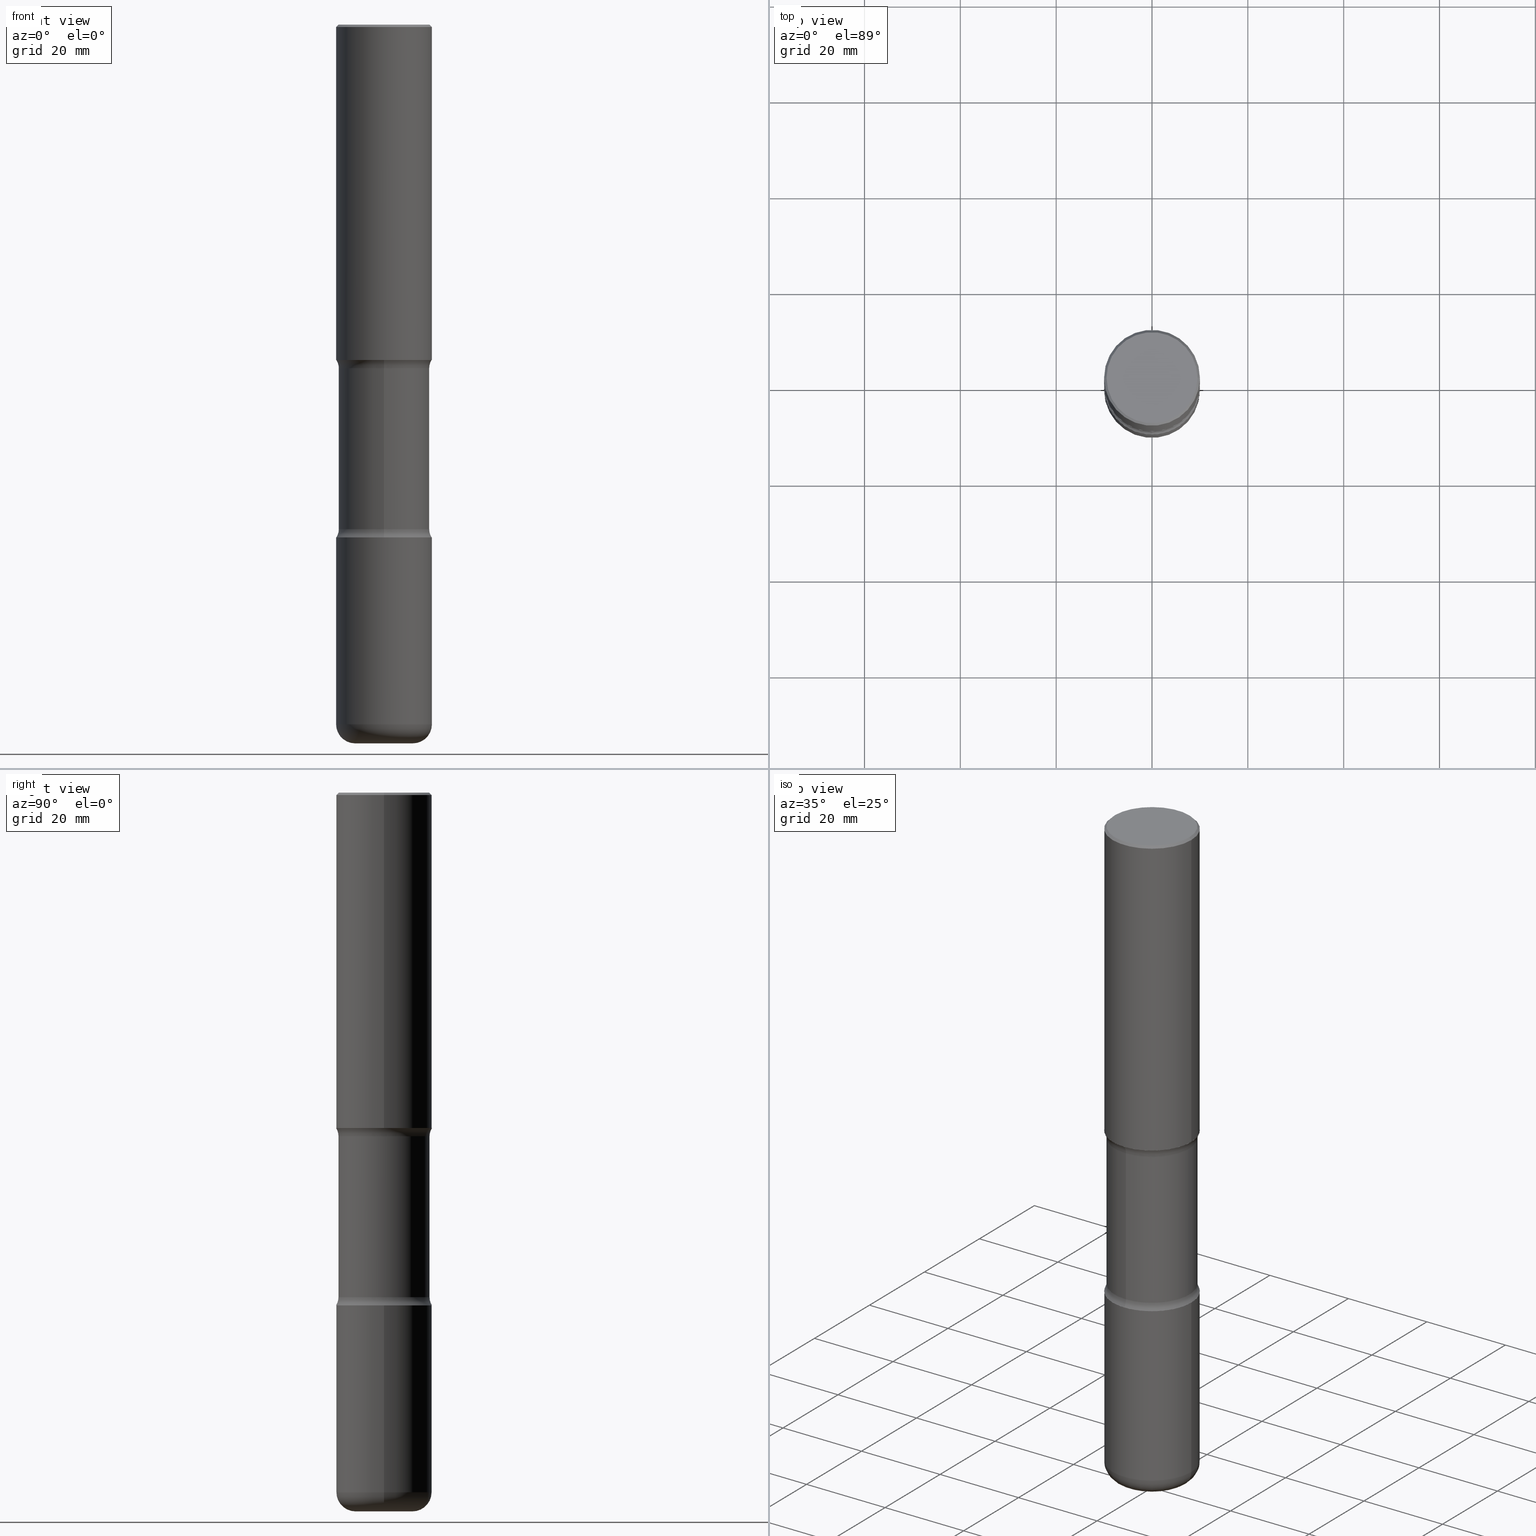
[diagram: canonical four-view strip — front | top / right | iso, engineering-drawing reading convention]
A machine part, canonical four-view strip (front | top / right | iso — engineering-drawing reading convention). The complete STEP part file that produces these views, byte-faithful:
ISO-10303-21;
HEADER;
FILE_DESCRIPTION (( 'STEP AP203' ),
    '1' );
FILE_NAME ('47760.STEP',
    '2024-03-02T08:42:24',
    ( '' ),
    ( '' ),
    'SwSTEP 2.0',
    'SolidWorks 2023',
    '' );
FILE_SCHEMA (( 'CONFIG_CONTROL_DESIGN' ));
ENDSEC;

DATA;
#1 = CARTESIAN_POINT ( 'NONE',  ( 0.3736999999999999211, -2.667287895133367964E-15, 8.537024980219274507E-18 ) ) ;
#2 = ORIENTED_EDGE ( 'NONE', *, *, #509, .T. ) ;
#3 =( CONVERSION_BASED_UNIT ( 'INCH', #264 ) LENGTH_UNIT ( ) NAMED_UNIT ( #525 ) );
#4 = DIRECTION ( 'NONE',  ( 2.499563752616943710E-29, -3.414014296659653741E-15, -1.000000000000000000 ) ) ;
#5 = LINE ( 'NONE', #468, #280 ) ;
#6 = ORIENTED_EDGE ( 'NONE', *, *, #22, .F. ) ;
#7 = AXIS2_PLACEMENT_3D ( 'NONE', #165, #336, #126 ) ;
#8 = CIRCLE ( 'NONE', #68, 0.3937000000000002720 ) ;
#9 = PRODUCT_DEFINITION ( 'UNKNOWN', '', #92, #105 ) ;
#10 = DIRECTION ( 'NONE',  ( 1.000000000000000000, -6.982962677686269866E-15, 0.000000000000000000 ) ) ;
#11 = AXIS2_PLACEMENT_3D ( 'NONE', #486, #65, #156 ) ;
#12 = CARTESIAN_POINT ( 'NONE',  ( 6.739467482965614869E-29, -9.622173421717819657E-15, -2.755899999999998240 ) ) ;
#13 = ORIENTED_EDGE ( 'NONE', *, *, #412, .T. ) ;
#14 = CC_DESIGN_DATE_AND_TIME_ASSIGNMENT ( #533, #501, ( #281 ) ) ;
#15 = DIRECTION ( 'NONE',  ( 6.860497997771531562E-15, 1.000000000000000000, 0.000000000000000000 ) ) ;
#16 = VERTEX_POINT ( 'NONE', #71 ) ;
#17 = FACE_OUTER_BOUND ( 'NONE', #186, .T. ) ;
#18 = DIRECTION ( 'NONE',  ( -2.438088387897960049E-29, 3.491481338843145188E-15, 1.000000000000000000 ) ) ;
#19 = DIRECTION ( 'NONE',  ( -2.445468806185136597E-29, 3.491481338843145583E-15, 1.000000000000000000 ) ) ;
#20 = AXIS2_PLACEMENT_3D ( 'NONE', #369, #194, #367 ) ;
#21 = AXIS2_PLACEMENT_3D ( 'NONE', #473, #349, #214 ) ;
#22 = EDGE_CURVE ( 'NONE', #16, #292, #483, .T. ) ;
#23 = LINE ( 'NONE', #499, #401 ) ;
#24 = DIRECTION ( 'NONE',  ( -2.445468806185136597E-29, 3.491481338843145583E-15, 1.000000000000000000 ) ) ;
#25 = ORIENTED_EDGE ( 'NONE', *, *, #123, .F. ) ;
#26 = ADVANCED_FACE ( 'NONE', ( #449 ), #150, .F. ) ;
#27 = ADVANCED_BREP_SHAPE_REPRESENTATION ( '47760', ( #469, #106, #110, #224 ), #419 ) ;
#28 = FACE_OUTER_BOUND ( 'NONE', #406, .T. ) ;
#29 = AXIS2_PLACEMENT_3D ( 'NONE', #512, #526, #515 ) ;
#30 = CARTESIAN_POINT ( 'NONE',  ( 6.660667374498401538E-29, -9.735019662066511300E-15, -2.755899999999998240 ) ) ;
#31 = DIRECTION ( 'NONE',  ( 1.000000000000000000, -6.982962677686266711E-15, 4.876176775795935793E-29 ) ) ;
#32 = ORIENTED_EDGE ( 'NONE', *, *, #379, .F. ) ;
#33 = DIRECTION ( 'NONE',  ( -2.445468806185136597E-29, 3.491481338843145583E-15, 1.000000000000000000 ) ) ;
#34 = CIRCLE ( 'NONE', #291, 0.3937000000000002720 ) ;
#35 = DIRECTION ( 'NONE',  ( -2.445468806185136877E-29, 3.491481338843145188E-15, 1.000000000000000000 ) ) ;
#36 = ADVANCED_FACE ( 'NONE', ( #28 ), #211, .F. ) ;
#37 = ORIENTED_EDGE ( 'NONE', *, *, #402, .T. ) ;
#38 = ORIENTED_EDGE ( 'NONE', *, *, #109, .F. ) ;
#39 = EDGE_CURVE ( 'NONE', #271, #387, #290, .T. ) ;
#40 = FACE_OUTER_BOUND ( 'NONE', #220, .T. ) ;
#41 = ORIENTED_EDGE ( 'NONE', *, *, #130, .F. ) ;
#42 = EDGE_CURVE ( 'NONE', #53, #373, #426, .T. ) ;
#43 = ADVANCED_FACE ( 'NONE', ( #446 ), #427, .T. ) ;
#44 = DIRECTION ( 'NONE',  ( 2.499563752616943710E-29, -3.414014296659653741E-15, -1.000000000000000000 ) ) ;
#45 = CIRCLE ( 'NONE', #354, 0.3937000000000002164 ) ;
#46 = LOCAL_TIME ( 3, 42, 24.00000000000000000, #393 ) ;
#47 = VERTEX_POINT ( 'NONE', #531 ) ;
#48 = LINE ( 'NONE', #479, #91 ) ;
#49 = ORIENTED_EDGE ( 'NONE', *, *, #284, .T. ) ;
#50 =( NAMED_UNIT ( * ) PLANE_ANGLE_UNIT ( ) SI_UNIT ( $, .RADIAN. ) );
#51 = DIRECTION ( 'NONE',  ( -1.000000000000000000, 6.982962677686265922E-15, -4.876176775795935793E-29 ) ) ;
#52 = CARTESIAN_POINT ( 'NONE',  ( -0.2362000000000005762, -1.810613454482786010E-14, -5.905499999999999972 ) ) ;
#53 = VERTEX_POINT ( 'NONE', #279 ) ;
#54 = CARTESIAN_POINT ( 'NONE',  ( 0.000000000000000000, 0.000000000000000000, 0.000000000000000000 ) ) ;
#55 = CARTESIAN_POINT ( 'NONE',  ( 3.484498376165515577E-15, 0.4989999999999901736, -2.823256588393415534 ) ) ;
#56 = EDGE_LOOP ( 'NONE', ( #38, #215, #37, #503 ) ) ;
#57 = APPROVAL_PERSON_ORGANIZATION ( #390, #155, #58 ) ;
#58 = APPROVAL_ROLE ( '' ) ;
#59 = CARTESIAN_POINT ( 'NONE',  ( 6.856494937320590076E-29, -9.925643892983175518E-15, -2.823256588393414201 ) ) ;
#60 = PERSON_AND_ORGANIZATION ( #296, #514 ) ;
#61 = EDGE_CURVE ( 'NONE', #560, #47, #325, .T. ) ;
#62 = ORIENTED_EDGE ( 'NONE', *, *, #182, .F. ) ;
#63 = PERSON_AND_ORGANIZATION ( #296, #514 ) ;
#64 = EDGE_CURVE ( 'NONE', #373, #310, #485, .T. ) ;
#65 = DIRECTION ( 'NONE',  ( 2.438088387897960049E-29, -3.491481338843145188E-15, -1.000000000000000000 ) ) ;
#66 = CARTESIAN_POINT ( 'NONE',  ( 1.030178189293550378E-28, -1.470821428801063089E-14, -4.212599999999998346 ) ) ;
#67 = TOROIDAL_SURFACE ( 'NONE', #247, 0.2362000000000005484, 0.1574999999999997791 ) ;
#68 = AXIS2_PLACEMENT_3D ( 'NONE', #329, #187, #357 ) ;
#69 = FACE_OUTER_BOUND ( 'NONE', #425, .T. ) ;
#70 = ADVANCED_FACE ( 'NONE', ( #487 ), #534, .T. ) ;
#71 = CARTESIAN_POINT ( 'NONE',  ( -0.3936999999999999389, 2.679362779428219524E-15, -0.02000000000000010103 ) ) ;
#72 = SHAPE_DEFINITION_REPRESENTATION ( #259, #27 ) ;
#73 = CARTESIAN_POINT ( 'NONE',  ( -0.3937000000000003830, 2.797406750687517153E-15, -1.936584745033358137E-29 ) ) ;
#74 = DIRECTION ( 'NONE',  ( 7.105427357601001859E-15, 1.000000000000000000, -3.491481338843145583E-15 ) ) ;
#75 = CLOSED_SHELL ( 'NONE', ( #288, #26, #36, #359, #502, #175, #434, #338 ) ) ;
#76 = VECTOR ( 'NONE', #364, 39.37007874015748143 ) ;
#77 = CC_DESIGN_APPROVAL ( #155, ( #92 ) ) ;
#78 = CARTESIAN_POINT ( 'NONE',  ( 0.000000000000000000, 0.000000000000000000, 0.000000000000000000 ) ) ;
#79 = CARTESIAN_POINT ( 'NONE',  ( -2.087702828670439639E-46, 2.980686340760894400E-32, 8.537024980200822558E-18 ) ) ;
#80 = ORIENTED_EDGE ( 'NONE', *, *, #304, .T. ) ;
#81 = DIRECTION ( 'NONE',  ( -2.445468806185136597E-29, 3.491481338843145583E-15, 1.000000000000000000 ) ) ;
#82 = AXIS2_PLACEMENT_3D ( 'NONE', #323, #492, #228 ) ;
#83 = FACE_OUTER_BOUND ( 'NONE', #522, .T. ) ;
#84 = DIRECTION ( 'NONE',  ( -1.000000000000000000, 6.982962677686265922E-15, -4.883557194083112340E-29 ) ) ;
#85 = EDGE_LOOP ( 'NONE', ( #530, #96, #225, #32 ) ) ;
#86 = EDGE_CURVE ( 'NONE', #53, #136, #34, .T. ) ;
#87 = DIRECTION ( 'NONE',  ( 2.499563752616943710E-29, -3.414014296659653741E-15, -1.000000000000000000 ) ) ;
#88 = EDGE_LOOP ( 'NONE', ( #25, #452 ) ) ;
#89 = CARTESIAN_POINT ( 'NONE',  ( 0.000000000000000000, 0.000000000000000000, 0.000000000000000000 ) ) ;
#90 = DIRECTION ( 'NONE',  ( -6.982962677686268288E-15, -1.000000000000000000, 0.000000000000000000 ) ) ;
#91 = VECTOR ( 'NONE', #140, 39.37007874015748143 ) ;
#92 = PRODUCT_DEFINITION_FORMATION_WITH_SPECIFIED_SOURCE ( 'ANY', '', #490, .NOT_KNOWN. ) ;
#93 = ORIENTED_EDGE ( 'NONE', *, *, #345, .F. ) ;
#94 = PERSON_AND_ORGANIZATION_ROLE ( 'creator' ) ;
#95 = DIRECTION ( 'NONE',  ( 2.499563752616943710E-29, -3.414014296659653741E-15, -1.000000000000000000 ) ) ;
#96 = ORIENTED_EDGE ( 'NONE', *, *, #61, .T. ) ;
#97 = APPROVAL_ROLE ( '' ) ;
#98 = EDGE_CURVE ( 'NONE', #319, #246, #179, .T. ) ;
#99 = CYLINDRICAL_SURFACE ( 'NONE', #171, 0.3937000000000001054 ) ;
#100 = ORIENTED_EDGE ( 'NONE', *, *, #64, .F. ) ;
#101 = PERSON_AND_ORGANIZATION ( #296, #514 ) ;
#102 = CLOSED_SHELL ( 'NONE', ( #278, #312, #43, #433, #494, #416 ) ) ;
#103 = ORIENTED_EDGE ( 'NONE', *, *, #64, .T. ) ;
#104 = AXIS2_PLACEMENT_3D ( 'NONE', #55, #84, #90 ) ;
#105 = DESIGN_CONTEXT ( 'detailed design', #308, 'design' ) ;
#106 = MANIFOLD_SOLID_BREP ( 'Body-Move/Copy2[2]', #102 ) ;
#107 = CARTESIAN_POINT ( 'NONE',  ( -3.423388500887925735E-15, -0.4990000000000099356, -2.823256588393412425 ) ) ;
#108 = CARTESIAN_POINT ( 'NONE',  ( 1.405655469795216423E-28, -2.006903473567040335E-14, -5.748000000000000220 ) ) ;
#109 = EDGE_CURVE ( 'NONE', #319, #292, #23, .T. ) ;
#110 = MANIFOLD_SOLID_BREP ( 'Body-Move/Copy2[4]', #75 ) ;
#111 = CARTESIAN_POINT ( 'NONE',  ( 3.484498376165549498E-15, 0.4989999999999857327, -4.145243411606585049 ) ) ;
#112 = DIRECTION ( 'NONE',  ( 6.982962677686265922E-15, 1.000000000000000000, -2.775563112689114723E-15 ) ) ;
#113 = EDGE_CURVE ( 'NONE', #173, #373, #372, .T. ) ;
#114 = CARTESIAN_POINT ( 'NONE',  ( -2.087702828670439639E-46, 2.980686340760894400E-32, 8.537024980200822558E-18 ) ) ;
#115 = CIRCLE ( 'NONE', #440, 0.2362000000000005762 ) ;
#116 = EDGE_CURVE ( 'NONE', #544, #241, #45, .T. ) ;
#117 = DIRECTION ( 'NONE',  ( 1.000000000000000000, -6.860497997771530774E-15, 4.841747577276637457E-29 ) ) ;
#118 = ORIENTED_EDGE ( 'NONE', *, *, #341, .T. ) ;
#119 = PERSON_AND_ORGANIZATION_ROLE ( 'classification_officer' ) ;
#120 = DIRECTION ( 'NONE',  ( -2.445468806185136597E-29, 3.491481338843145583E-15, 1.000000000000000000 ) ) ;
#121 = CARTESIAN_POINT ( 'NONE',  ( -2.633402156444536217E-15, -0.3740000000000101577, -2.823256588393413313 ) ) ;
#122 = ORIENTED_EDGE ( 'NONE', *, *, #536, .T. ) ;
#123 = EDGE_CURVE ( 'NONE', #216, #320, #115, .T. ) ;
#124 = CONICAL_SURFACE ( 'NONE', #129, 0.3936999999999999389, 0.7853981633974471688 ) ;
#125 = CIRCLE ( 'NONE', #467, 0.3740000000000001656 ) ;
#126 = DIRECTION ( 'NONE',  ( 1.000000000000000000, -6.982962677686266711E-15, 0.000000000000000000 ) ) ;
#127 = CYLINDRICAL_SURFACE ( 'NONE', #313, 0.3937000000000003830 ) ;
#128 = CARTESIAN_POINT ( 'NONE',  ( -0.3736999999999999211, 2.644447966039788269E-15, 8.537024980182450727E-18 ) ) ;
#129 = AXIS2_PLACEMENT_3D ( 'NONE', #258, #386, #395 ) ;
#130 = EDGE_CURVE ( 'NONE', #320, #560, #201, .T. ) ;
#131 = CARTESIAN_POINT ( 'NONE',  ( 2.611628041454766160E-15, 0.3739999999999856772, -4.145243411606584161 ) ) ;
#132 = CARTESIAN_POINT ( 'NONE',  ( 6.739467482965614869E-29, -9.622173421717819657E-15, -2.755899999999998240 ) ) ;
#133 = EDGE_LOOP ( 'NONE', ( #263, #352 ) ) ;
#134 = CARTESIAN_POINT ( 'NONE',  ( -0.3937000000000004385, -1.727162798498288305E-14, -5.748000000000000220 ) ) ;
#135 = DIRECTION ( 'NONE',  ( -2.445468806185136877E-29, 3.491481338843145188E-15, 1.000000000000000000 ) ) ;
#136 = VERTEX_POINT ( 'NONE', #206 ) ;
#137 = UNCERTAINTY_MEASURE_WITH_UNIT (LENGTH_MEASURE( 1.000000000000000082E-05 ), #3, 'distance_accuracy_value', 'NONE');
#138 = APPLICATION_PROTOCOL_DEFINITION ( 'international standard', 'config_control_design', 1994, #308 ) ;
#139 = CLOSED_SHELL ( 'NONE', ( #205, #238, #524, #70, #550, #407 ) ) ;
#140 = DIRECTION ( 'NONE',  ( 2.499563752616943710E-29, -3.414014296659653741E-15, -1.000000000000000000 ) ) ;
#141 = AXIS2_PLACEMENT_3D ( 'NONE', #219, #87, #430 ) ;
#142 = CIRCLE ( 'NONE', #376, 0.1249999999999999029 ) ;
#143 = ORIENTED_EDGE ( 'NONE', *, *, #520, .F. ) ;
#144 = EDGE_CURVE ( 'NONE', #246, #319, #417, .T. ) ;
#145 = APPROVAL_DATE_TIME ( #317, #155 ) ;
#146 = DIRECTION ( 'NONE',  ( 2.499563752616943710E-29, -3.414014296659653741E-15, -1.000000000000000000 ) ) ;
#147 = ORIENTED_EDGE ( 'NONE', *, *, #341, .F. ) ;
#148 = CALENDAR_DATE ( 2024, 2, 3 ) ;
#149 = EDGE_LOOP ( 'NONE', ( #422, #519 ) ) ;
#150 = TOROIDAL_SURFACE ( 'NONE', #458, 0.4990000000000002212, 0.1249999999999998751 ) ;
#151 = ORIENTED_EDGE ( 'NONE', *, *, #294, .T. ) ;
#152 = CC_DESIGN_APPROVAL ( #272, ( #281 ) ) ;
#153 = CARTESIAN_POINT ( 'NONE',  ( 6.739467482965614869E-29, -9.622173421717819657E-15, -2.755899999999998240 ) ) ;
#154 = ORIENTED_EDGE ( 'NONE', *, *, #130, .T. ) ;
#155 = APPROVAL ( #177, 'UNSPECIFIED' ) ;
#156 = DIRECTION ( 'NONE',  ( -1.000000000000000000, 6.982962677686265922E-15, -4.876176775795935793E-29 ) ) ;
#157 = ORIENTED_EDGE ( 'NONE', *, *, #98, .F. ) ;
#158 = CIRCLE ( 'NONE', #248, 0.3937000000000002720 ) ;
#159 = ORIENTED_EDGE ( 'NONE', *, *, #236, .T. ) ;
#160 = FACE_OUTER_BOUND ( 'NONE', #461, .T. ) ;
#161 = ORIENTED_EDGE ( 'NONE', *, *, #109, .T. ) ;
#162 = CARTESIAN_POINT ( 'NONE',  ( 6.739467482965614869E-29, -9.622173421717819657E-15, -2.755899999999998240 ) ) ;
#163 = ORIENTED_EDGE ( 'NONE', *, *, #536, .F. ) ;
#164 = TOROIDAL_SURFACE ( 'NONE', #270, 0.4990000000000000546, 0.1249999999999998612 ) ;
#165 = CARTESIAN_POINT ( 'NONE',  ( 4.890937612370298557E-31, -6.982962677686327354E-17, -0.02000000000000010103 ) ) ;
#166 = PLANE ( 'NONE',  #363 ) ;
#167 = DIRECTION ( 'NONE',  ( -2.445468806185136597E-29, 3.491481338843145583E-15, 1.000000000000000000 ) ) ;
#168 = VERTEX_POINT ( 'NONE', #460 ) ;
#169 = FACE_OUTER_BOUND ( 'NONE', #255, .T. ) ;
#170 = CIRCLE ( 'NONE', #230, 0.3740000000000001656 ) ;
#171 = AXIS2_PLACEMENT_3D ( 'NONE', #438, #254, #424 ) ;
#172 = CARTESIAN_POINT ( 'NONE',  ( 2.749192406205151847E-15, 0.3936999999999906685, -2.755899999999999572 ) ) ;
#173 = VERTEX_POINT ( 'NONE', #121 ) ;
#174 = DIRECTION ( 'NONE',  ( -6.982962677686266711E-15, -1.000000000000000000, 3.491481338843145583E-15 ) ) ;
#175 = ADVANCED_FACE ( 'NONE', ( #500 ), #287, .F. ) ;
#176 = ORIENTED_EDGE ( 'NONE', *, *, #113, .T. ) ;
#177 = APPROVAL_STATUS ( 'not_yet_approved' ) ;
#178 = DIRECTION ( 'NONE',  ( -0.7071067811865466846, 2.468850131082247989E-15, -0.7071067811865483499 ) ) ;
#179 = CIRCLE ( 'NONE', #189, 0.3736999999999999211 ) ;
#180 = TOROIDAL_SURFACE ( 'NONE', #314, 0.4990000000000002212, 0.1249999999999998751 ) ;
#181 = ORIENTED_EDGE ( 'NONE', *, *, #402, .F. ) ;
#182 = EDGE_CURVE ( 'NONE', #241, #16, #298, .T. ) ;
#183 = ORIENTED_EDGE ( 'NONE', *, *, #42, .F. ) ;
#184 = PERSON_AND_ORGANIZATION_ROLE ( 'design_supplier' ) ;
#185 = DIRECTION ( 'NONE',  ( 2.499563752616943430E-29, -3.414014296659653741E-15, -1.000000000000000000 ) ) ;
#186 = EDGE_LOOP ( 'NONE', ( #299, #207, #516, #210 ) ) ;
#187 = DIRECTION ( 'NONE',  ( -2.445468806185136597E-29, 3.491481338843145583E-15, 1.000000000000000000 ) ) ;
#188 = DIRECTION ( 'NONE',  ( 6.860497997771527618E-15, 1.000000000000000000, 0.000000000000000000 ) ) ;
#189 = AXIS2_PLACEMENT_3D ( 'NONE', #114, #276, #229 ) ;
#190 = ORIENTED_EDGE ( 'NONE', *, *, #297, .F. ) ;
#191 = DIRECTION ( 'NONE',  ( 1.000000000000000000, -6.982962677686269866E-15, 0.000000000000000000 ) ) ;
#192 = DIRECTION ( 'NONE',  ( 2.499563752616943710E-29, -3.414014296659653741E-15, -1.000000000000000000 ) ) ;
#193 = CC_DESIGN_PERSON_AND_ORGANIZATION_ASSIGNMENT ( #60, #94, ( #9 ) ) ;
#194 = DIRECTION ( 'NONE',  ( 2.499563752616943710E-29, -3.414014296659653741E-15, -1.000000000000000000 ) ) ;
#195 = VECTOR ( 'NONE', #135, 39.37007874015748143 ) ;
#196 = CALENDAR_DATE ( 2024, 2, 3 ) ;
#197 = DIRECTION ( 'NONE',  ( 6.982962677686265922E-15, 1.000000000000000000, -2.775563112689113540E-15 ) ) ;
#198 = EDGE_CURVE ( 'NONE', #310, #373, #170, .T. ) ;
#199 = DIRECTION ( 'NONE',  ( -2.445468806185136597E-29, 3.491481338843145583E-15, 1.000000000000000000 ) ) ;
#200 = DIRECTION ( 'NONE',  ( -2.499563752616943430E-29, 3.414014296659653741E-15, 1.000000000000000000 ) ) ;
#201 = CIRCLE ( 'NONE', #545, 0.1574999999999998346 ) ;
#202 = LOCAL_TIME ( 3, 42, 24.00000000000000000, #476 ) ;
#203 = DIRECTION ( 'NONE',  ( 6.982962677686266711E-15, 1.000000000000000000, -2.921762560068729411E-15 ) ) ;
#204 = EDGE_LOOP ( 'NONE', ( #382, #154, #143, #190 ) ) ;
#205 = ADVANCED_FACE ( 'NONE', ( #289 ), #127, .T. ) ;
#206 = CARTESIAN_POINT ( 'NONE',  ( 2.749192406205187346E-15, 0.3936999999999854505, -4.212600000000000122 ) ) ;
#207 = ORIENTED_EDGE ( 'NONE', *, *, #558, .T. ) ;
#208 = CC_DESIGN_PERSON_AND_ORGANIZATION_ASSIGNMENT ( #397, #184, ( #92 ) ) ;
#209 = CARTESIAN_POINT ( 'NONE',  ( 0.3937000000000003830, -2.749192406205085978E-15, 1.919750796630861853E-29 ) ) ;
#210 = ORIENTED_EDGE ( 'NONE', *, *, #213, .F. ) ;
#211 = TOROIDAL_SURFACE ( 'NONE', #532, 0.4990000000000000546, 0.1249999999999998612 ) ;
#212 = CIRCLE ( 'NONE', #538, 0.1574999999999998346 ) ;
#213 = EDGE_CURVE ( 'NONE', #47, #168, #158, .T. ) ;
#214 = DIRECTION ( 'NONE',  ( 6.982962677686266711E-15, 1.000000000000000000, -2.921762560068729411E-15 ) ) ;
#215 = ORIENTED_EDGE ( 'NONE', *, *, #144, .F. ) ;
#216 = VERTEX_POINT ( 'NONE', #465 ) ;
#217 = CALENDAR_DATE ( 2024, 2, 3 ) ;
#218 = CARTESIAN_POINT ( 'NONE',  ( 6.829029461346524548E-29, -9.964976017815853586E-15, -2.823256588393414646 ) ) ;
#219 = CARTESIAN_POINT ( 'NONE',  ( 1.453329336974072664E-28, -2.048779909082575425E-14, -5.905499999999998195 ) ) ;
#220 = EDGE_LOOP ( 'NONE', ( #157, #161, #159, #181 ) ) ;
#221 = PERSON_AND_ORGANIZATION ( #296, #514 ) ;
#222 = AXIS2_PLACEMENT_3D ( 'NONE', #132, #265, #381 ) ;
#223 = CARTESIAN_POINT ( 'NONE',  ( -2.633402156444500718E-15, -0.3740000000000146541, -4.145243411606582384 ) ) ;
#224 = AXIS2_PLACEMENT_3D ( 'NONE', #89, #428, #385 ) ;
#225 = ORIENTED_EDGE ( 'NONE', *, *, #491, .F. ) ;
#226 = PERSON_AND_ORGANIZATION_ROLE ( 'creator' ) ;
#227 = CARTESIAN_POINT ( 'NONE',  ( -3.423388500887893787E-15, -0.4990000000000146541, -4.145243411606581496 ) ) ;
#228 = DIRECTION ( 'NONE',  ( 6.982962677686266711E-15, 1.000000000000000000, -2.921762560068729411E-15 ) ) ;
#229 = DIRECTION ( 'NONE',  ( 1.000000000000000000, -6.982962677686266711E-15, 4.876212485538976239E-29 ) ) ;
#230 = AXIS2_PLACEMENT_3D ( 'NONE', #245, #420, #203 ) ;
#231 = DIRECTION ( 'NONE',  ( 2.499563752616943710E-29, -3.414014296659653741E-15, -1.000000000000000000 ) ) ;
#232 = ORIENTED_EDGE ( 'NONE', *, *, #42, .T. ) ;
#233 = APPROVAL_ROLE ( '' ) ;
#234 = CARTESIAN_POINT ( 'NONE',  ( -0.3937000000000002720, -2.048594773559823141E-15, -2.755899999999998240 ) ) ;
#235 = VECTOR ( 'NONE', #543, 39.37007874015748143 ) ;
#236 = EDGE_CURVE ( 'NONE', #292, #16, #495, .T. ) ;
#237 = AXIS2_PLACEMENT_3D ( 'NONE', #405, #24, #191 ) ;
#238 = ADVANCED_FACE ( 'NONE', ( #337 ), #67, .T. ) ;
#239 = DIRECTION ( 'NONE',  ( -2.445468806185136597E-29, 3.491481338843145583E-15, 1.000000000000000000 ) ) ;
#240 = APPLICATION_CONTEXT ( 'configuration controlled 3d designs of mechanical parts and assemblies' ) ;
#241 = VERTEX_POINT ( 'NONE', #234 ) ;
#242 = CC_DESIGN_PERSON_AND_ORGANIZATION_ASSIGNMENT ( #221, #226, ( #92 ) ) ;
#243 = DIRECTION ( 'NONE',  ( 1.000000000000000000, -6.982962677686266711E-15, 4.876176775795935793E-29 ) ) ;
#244 = ORIENTED_EDGE ( 'NONE', *, *, #306, .F. ) ;
#245 = CARTESIAN_POINT ( 'NONE',  ( 1.013341980608738414E-28, -1.447825793226129018E-14, -4.145243411606583273 ) ) ;
#246 = VERTEX_POINT ( 'NONE', #128 ) ;
#247 = AXIS2_PLACEMENT_3D ( 'NONE', #508, #167, #464 ) ;
#248 = AXIS2_PLACEMENT_3D ( 'NONE', #414, #33, #374 ) ;
#249 = APPROVAL_PERSON_ORGANIZATION ( #63, #272, #233 ) ;
#250 = DIRECTION ( 'NONE',  ( -2.445468806185136597E-29, 3.491481338843145583E-15, 1.000000000000000000 ) ) ;
#251 = ORIENTED_EDGE ( 'NONE', *, *, #558, .F. ) ;
#252 = CARTESIAN_POINT ( 'NONE',  ( 1.030178189293550378E-28, -1.470821428801063089E-14, -4.212599999999998346 ) ) ;
#253 = ORIENTED_EDGE ( 'NONE', *, *, #86, .F. ) ;
#254 = DIRECTION ( 'NONE',  ( -2.445468806185136597E-29, 3.491481338843145583E-15, 1.000000000000000000 ) ) ;
#255 = EDGE_LOOP ( 'NONE', ( #316, #267 ) ) ;
#256 = AXIS2_PLACEMENT_3D ( 'NONE', #361, #274, #455 ) ;
#257 = AXIS2_PLACEMENT_3D ( 'NONE', #252, #146, #318 ) ;
#258 = CARTESIAN_POINT ( 'NONE',  ( 4.890937612370298557E-31, -6.982962677686327354E-17, -0.02000000000000010103 ) ) ;
#259 = PRODUCT_DEFINITION_SHAPE ( 'NONE', 'NONE',  #9 ) ;
#260 = VERTEX_POINT ( 'NONE', #549 ) ;
#261 = APPLICATION_PROTOCOL_DEFINITION ( 'international standard', 'config_control_design', 1994, #240 ) ;
#262 = DIRECTION ( 'NONE',  ( 6.982962677686265922E-15, 1.000000000000000000, -3.414014296659653741E-15 ) ) ;
#263 = ORIENTED_EDGE ( 'NONE', *, *, #144, .T. ) ;
#264 = LENGTH_MEASURE_WITH_UNIT ( LENGTH_MEASURE( 0.02539999999999999897 ), #444 );
#265 = DIRECTION ( 'NONE',  ( -2.445468806185136597E-29, 3.491481338843145583E-15, 1.000000000000000000 ) ) ;
#266 = EDGE_CURVE ( 'NONE', #387, #271, #513, .T. ) ;
#267 = ORIENTED_EDGE ( 'NONE', *, *, #213, .T. ) ;
#268 = DATE_AND_TIME ( #217, #46 ) ;
#269 = DIRECTION ( 'NONE',  ( -2.445468806185136597E-29, 3.491481338843145583E-15, 1.000000000000000000 ) ) ;
#270 = AXIS2_PLACEMENT_3D ( 'NONE', #477, #95, #262 ) ;
#271 = VERTEX_POINT ( 'NONE', #295 ) ;
#272 = APPROVAL ( #450, 'UNSPECIFIED' ) ;
#273 = DIRECTION ( 'NONE',  ( -2.445468806185136597E-29, 3.491481338843145583E-15, 1.000000000000000000 ) ) ;
#274 = DIRECTION ( 'NONE',  ( 2.445468806185136597E-29, -3.491481338843145583E-15, -1.000000000000000000 ) ) ;
#275 = DIRECTION ( 'NONE',  ( -1.000000000000000000, 6.982962677686265922E-15, -4.883557194083112340E-29 ) ) ;
#276 = DIRECTION ( 'NONE',  ( -2.445468806185136597E-29, 3.491481338843145583E-15, 1.000000000000000000 ) ) ;
#277 = PERSON_AND_ORGANIZATION ( #296, #514 ) ;
#278 = ADVANCED_FACE ( 'NONE', ( #160 ), #415, .T. ) ;
#279 = CARTESIAN_POINT ( 'NONE',  ( -2.700978061722549884E-15, -0.3937000000000149269, -4.212599999999997458 ) ) ;
#280 = VECTOR ( 'NONE', #178, 39.37007874015748143 ) ;
#281 = SECURITY_CLASSIFICATION ( '', '', #447 ) ;
#282 = CARTESIAN_POINT ( 'NONE',  ( 1.405655469795216423E-28, -2.006903473567040335E-14, -5.748000000000000220 ) ) ;
#283 = DIRECTION ( 'NONE',  ( 2.499563752616943710E-29, -3.414014296659653741E-15, -1.000000000000000000 ) ) ;
#284 = EDGE_CURVE ( 'NONE', #320, #216, #321, .T. ) ;
#285 = CARTESIAN_POINT ( 'NONE',  ( 1.013706345712835491E-28, -1.447304001658688186E-14, -4.145243411606583273 ) ) ;
#286 = COORDINATED_UNIVERSAL_TIME_OFFSET ( 5, 0, .BEHIND. ) ;
#287 = PLANE ( 'NONE',  #459 ) ;
#288 = ADVANCED_FACE ( 'NONE', ( #83 ), #309, .T. ) ;
#289 = FACE_OUTER_BOUND ( 'NONE', #85, .T. ) ;
#290 = CIRCLE ( 'NONE', #20, 0.3937000000000004385 ) ;
#291 = AXIS2_PLACEMENT_3D ( 'NONE', #66, #231, #112 ) ;
#292 = VERTEX_POINT ( 'NONE', #388 ) ;
#293 = DIRECTION ( 'NONE',  ( 0.7071067811865466846, -7.319954787623252890E-15, -0.7071067811865483499 ) ) ;
#294 = EDGE_CURVE ( 'NONE', #241, #544, #466, .T. ) ;
#295 = CARTESIAN_POINT ( 'NONE',  ( -2.700978061722587749E-15, -0.3937000000000100419, -2.755899999999997352 ) ) ;
#296 = PERSON ( 'UNSPECIFIED', 'UNSPECIFIED', 'UNSPECIFIED', ('UNSPECIFIED'), ('UNSPECIFIED'), ('UNSPECIFIED') ) ;
#297 = EDGE_CURVE ( 'NONE', #216, #260, #212, .T. ) ;
#298 = LINE ( 'NONE', #335, #496 ) ;
#299 = ORIENTED_EDGE ( 'NONE', *, *, #61, .F. ) ;
#300 = CIRCLE ( 'NONE', #21, 0.3740000000000001656 ) ;
#301 = CARTESIAN_POINT ( 'NONE',  ( 0.3937000000000002164, -1.237136582792290287E-14, -2.755899999999998240 ) ) ;
#302 = AXIS2_PLACEMENT_3D ( 'NONE', #54, #269, #547 ) ;
#303 = FACE_OUTER_BOUND ( 'NONE', #133, .T. ) ;
#304 = EDGE_CURVE ( 'NONE', #347, #173, #300, .T. ) ;
#305 = DIRECTION ( 'NONE',  ( 1.000000000000000000, -6.982962677686269866E-15, 0.000000000000000000 ) ) ;
#306 = EDGE_CURVE ( 'NONE', #347, #387, #343, .T. ) ;
#307 = EDGE_LOOP ( 'NONE', ( #403, #122, #418, #100 ) ) ;
#308 = APPLICATION_CONTEXT ( 'configuration controlled 3d designs of mechanical parts and assemblies' ) ;
#309 = CYLINDRICAL_SURFACE ( 'NONE', #368, 0.3740000000000001656 ) ;
#310 = VERTEX_POINT ( 'NONE', #131 ) ;
#311 = PERSON_AND_ORGANIZATION ( #296, #514 ) ;
#312 = ADVANCED_FACE ( 'NONE', ( #40 ), #124, .T. ) ;
#313 = AXIS2_PLACEMENT_3D ( 'NONE', #380, #250, #243 ) ;
#314 = AXIS2_PLACEMENT_3D ( 'NONE', #399, #283, #529 ) ;
#315 = LINE ( 'NONE', #554, #195 ) ;
#316 = ORIENTED_EDGE ( 'NONE', *, *, #491, .T. ) ;
#317 = DATE_AND_TIME ( #523, #429 ) ;
#318 = DIRECTION ( 'NONE',  ( 6.982962677686265922E-15, 1.000000000000000000, -2.775563112689114723E-15 ) ) ;
#319 = VERTEX_POINT ( 'NONE', #1 ) ;
#320 = VERTEX_POINT ( 'NONE', #52 ) ;
#321 = CIRCLE ( 'NONE', #384, 0.2362000000000005762 ) ;
#322 = AXIS2_PLACEMENT_3D ( 'NONE', #282, #273, #10 ) ;
#323 = CARTESIAN_POINT ( 'NONE',  ( 1.013341980608738414E-28, -1.447825793226129018E-14, -4.145243411606583273 ) ) ;
#324 = PLANE ( 'NONE',  #411 ) ;
#325 = LINE ( 'NONE', #73, #76 ) ;
#326 = APPROVAL ( #481, 'UNSPECIFIED' ) ;
#327 = DIRECTION ( 'NONE',  ( 6.982962677686265922E-15, 1.000000000000000000, -3.414014296659653741E-15 ) ) ;
#328 = CALENDAR_DATE ( 2024, 2, 3 ) ;
#329 = CARTESIAN_POINT ( 'NONE',  ( 1.030178189293550378E-28, -1.470821428801063089E-14, -4.212599999999998346 ) ) ;
#330 = CYLINDRICAL_SURFACE ( 'NONE', #302, 0.3937000000000003830 ) ;
#331 = DIRECTION ( 'NONE',  ( 2.499563752616943710E-29, -3.414014296659653741E-15, -1.000000000000000000 ) ) ;
#332 = CIRCLE ( 'NONE', #237, 0.3937000000000004940 ) ;
#333 = AXIS2_PLACEMENT_3D ( 'NONE', #107, #117, #15 ) ;
#334 = CARTESIAN_POINT ( 'NONE',  ( 1.030178189293550378E-28, -1.470821428801063089E-14, -4.212599999999998346 ) ) ;
#335 = CARTESIAN_POINT ( 'NONE',  ( -0.3937000000000001054, 2.797406750687515181E-15, -1.936584745033357016E-29 ) ) ;
#336 = DIRECTION ( 'NONE',  ( -2.445468806185136597E-29, 3.491481338843145583E-15, 1.000000000000000000 ) ) ;
#337 = FACE_OUTER_BOUND ( 'NONE', #204, .T. ) ;
#338 = ADVANCED_FACE ( 'NONE', ( #518 ), #342, .T. ) ;
#339 = DIRECTION ( 'NONE',  ( 6.982962677686266711E-15, 1.000000000000000000, -2.921762560068729411E-15 ) ) ;
#340 = DIRECTION ( 'NONE',  ( 1.000000000000000000, -6.982962677686272233E-15, 0.000000000000000000 ) ) ;
#341 = EDGE_CURVE ( 'NONE', #544, #292, #315, .T. ) ;
#342 = CYLINDRICAL_SURFACE ( 'NONE', #141, 0.3740000000000001656 ) ;
#343 = CIRCLE ( 'NONE', #104, 0.1249999999999998335 ) ;
#344 = APPROVAL_PERSON_ORGANIZATION ( #311, #326, #97 ) ;
#345 = EDGE_CURVE ( 'NONE', #347, #310, #48, .T. ) ;
#346 = FACE_OUTER_BOUND ( 'NONE', #542, .T. ) ;
#347 = VERTEX_POINT ( 'NONE', #351 ) ;
#348 = APPROVAL_DATE_TIME ( #528, #326 ) ;
#349 = DIRECTION ( 'NONE',  ( 2.499563752616943710E-29, -3.414014296659653741E-15, -1.000000000000000000 ) ) ;
#350 = EDGE_LOOP ( 'NONE', ( #13, #535 ) ) ;
#351 = CARTESIAN_POINT ( 'NONE',  ( 2.611628041454733028E-15, 0.3739999999999901736, -2.823256588393415534 ) ) ;
#352 = ORIENTED_EDGE ( 'NONE', *, *, #98, .T. ) ;
#353 = COORDINATED_UNIVERSAL_TIME_OFFSET ( 5, 0, .BEHIND. ) ;
#354 = AXIS2_PLACEMENT_3D ( 'NONE', #162, #552, #413 ) ;
#355 = PLANE ( 'NONE',  #29 ) ;
#356 = ORIENTED_EDGE ( 'NONE', *, *, #509, .F. ) ;
#357 = DIRECTION ( 'NONE',  ( 1.000000000000000000, -6.982962677686269077E-15, 0.000000000000000000 ) ) ;
#358 = ORIENTED_EDGE ( 'NONE', *, *, #116, .T. ) ;
#359 = ADVANCED_FACE ( 'NONE', ( #346 ), #164, .F. ) ;
#360 = PLANE ( 'NONE',  #11 ) ;
#361 = CARTESIAN_POINT ( 'NONE',  ( 4.890937612370298557E-31, -6.982962677686327354E-17, -0.02000000000000010103 ) ) ;
#362 = AXIS2_PLACEMENT_3D ( 'NONE', #79, #81, #410 ) ;
#363 = AXIS2_PLACEMENT_3D ( 'NONE', #456, #432, #51 ) ;
#364 = DIRECTION ( 'NONE',  ( -2.445468806185136877E-29, 3.491481338843145188E-15, 1.000000000000000000 ) ) ;
#365 = DATE_AND_TIME ( #196, #394 ) ;
#366 = FACE_OUTER_BOUND ( 'NONE', #88, .T. ) ;
#367 = DIRECTION ( 'NONE',  ( 6.982962677686265922E-15, 1.000000000000000000, -2.775563112689113540E-15 ) ) ;
#368 = AXIS2_PLACEMENT_3D ( 'NONE', #559, #44, #435 ) ;
#369 = CARTESIAN_POINT ( 'NONE',  ( 6.660667374498401538E-29, -9.735019662066511300E-15, -2.755899999999998240 ) ) ;
#370 = LOCAL_TIME ( 3, 42, 24.00000000000000000, #286 ) ;
#371 = CARTESIAN_POINT ( 'NONE',  ( -0.2362000000000005484, -1.839073279380504223E-14, -5.748000000000000220 ) ) ;
#372 = LINE ( 'NONE', #463, #235 ) ;
#373 = VERTEX_POINT ( 'NONE', #223 ) ;
#374 = DIRECTION ( 'NONE',  ( 1.000000000000000000, -6.982962677686269077E-15, 0.000000000000000000 ) ) ;
#375 = AXIS2_PLACEMENT_3D ( 'NONE', #30, #541, #197 ) ;
#376 = AXIS2_PLACEMENT_3D ( 'NONE', #111, #275, #448 ) ;
#377 = CARTESIAN_POINT ( 'NONE',  ( 1.444171603492632270E-28, -2.061894304653819197E-14, -5.905499999999999972 ) ) ;
#378 = ORIENTED_EDGE ( 'NONE', *, *, #306, .T. ) ;
#379 = EDGE_CURVE ( 'NONE', #260, #168, #521, .T. ) ;
#380 = CARTESIAN_POINT ( 'NONE',  ( 0.000000000000000000, 0.000000000000000000, 0.000000000000000000 ) ) ;
#381 = DIRECTION ( 'NONE',  ( 1.000000000000000000, -6.982962677686265133E-15, 0.000000000000000000 ) ) ;
#382 = ORIENTED_EDGE ( 'NONE', *, *, #123, .T. ) ;
#383 = AXIS2_PLACEMENT_3D ( 'NONE', #443, #19, #408 ) ;
#384 = AXIS2_PLACEMENT_3D ( 'NONE', #377, #199, #340 ) ;
#385 = DIRECTION ( 'NONE',  ( 1.000000000000000000, 0.000000000000000000, 0.000000000000000000 ) ) ;
#386 = DIRECTION ( 'NONE',  ( 2.445468806185136597E-29, -3.491481338843145583E-15, -1.000000000000000000 ) ) ;
#387 = VERTEX_POINT ( 'NONE', #172 ) ;
#388 = CARTESIAN_POINT ( 'NONE',  ( 0.3936999999999999389, -2.770807688499514945E-15, -0.02000000000000010103 ) ) ;
#389 = ORIENTED_EDGE ( 'NONE', *, *, #297, .T. ) ;
#390 = PERSON_AND_ORGANIZATION ( #296, #514 ) ;
#391 = DIRECTION ( 'NONE',  ( -2.445468806185136877E-29, 3.491481338843145188E-15, 1.000000000000000000 ) ) ;
#392 = ORIENTED_EDGE ( 'NONE', *, *, #236, .F. ) ;
#393 = COORDINATED_UNIVERSAL_TIME_OFFSET ( 5, 0, .BEHIND. ) ;
#394 = LOCAL_TIME ( 3, 42, 24.00000000000000000, #404 ) ;
#395 = DIRECTION ( 'NONE',  ( -1.000000000000000000, 6.982962677686266711E-15, 0.000000000000000000 ) ) ;
#396 = EDGE_LOOP ( 'NONE', ( #474, #436 ) ) ;
#397 = PERSON_AND_ORGANIZATION ( #296, #514 ) ;
#398 = ORIENTED_EDGE ( 'NONE', *, *, #304, .F. ) ;
#399 = CARTESIAN_POINT ( 'NONE',  ( 1.013706345712835491E-28, -1.447304001658688186E-14, -4.145243411606583273 ) ) ;
#400 = DIRECTION ( 'NONE',  ( 6.982962677686265922E-15, 1.000000000000000000, -3.414014296659653741E-15 ) ) ;
#401 = VECTOR ( 'NONE', #293, 39.37007874015748143 ) ;
#402 = EDGE_CURVE ( 'NONE', #246, #16, #5, .T. ) ;
#403 = ORIENTED_EDGE ( 'NONE', *, *, #113, .F. ) ;
#404 = COORDINATED_UNIVERSAL_TIME_OFFSET ( 5, 0, .BEHIND. ) ;
#405 = CARTESIAN_POINT ( 'NONE',  ( 1.405655469795216423E-28, -2.006903473567040335E-14, -5.748000000000000220 ) ) ;
#406 = EDGE_LOOP ( 'NONE', ( #163, #480, #507, #244 ) ) ;
#407 = ADVANCED_FACE ( 'NONE', ( #169 ), #355, .F. ) ;
#408 = DIRECTION ( 'NONE',  ( 1.000000000000000000, -6.982962677686266711E-15, 0.000000000000000000 ) ) ;
#409 = CIRCLE ( 'NONE', #257, 0.3937000000000002720 ) ;
#410 = DIRECTION ( 'NONE',  ( 1.000000000000000000, -6.982962677686266711E-15, 4.876212485538976239E-29 ) ) ;
#411 = AXIS2_PLACEMENT_3D ( 'NONE', #12, #185, #488 ) ;
#412 = EDGE_CURVE ( 'NONE', #136, #53, #409, .T. ) ;
#413 = DIRECTION ( 'NONE',  ( 1.000000000000000000, -6.982962677686265133E-15, 0.000000000000000000 ) ) ;
#414 = CARTESIAN_POINT ( 'NONE',  ( 1.030178189293550378E-28, -1.470821428801063089E-14, -4.212599999999998346 ) ) ;
#415 = CYLINDRICAL_SURFACE ( 'NONE', #504, 0.3937000000000001054 ) ;
#416 = ADVANCED_FACE ( 'NONE', ( #470 ), #99, .T. ) ;
#417 = CIRCLE ( 'NONE', #362, 0.3736999999999999211 ) ;
#418 = ORIENTED_EDGE ( 'NONE', *, *, #345, .T. ) ;
#419 =( GEOMETRIC_REPRESENTATION_CONTEXT ( 3 ) GLOBAL_UNCERTAINTY_ASSIGNED_CONTEXT ( ( #137 ) ) GLOBAL_UNIT_ASSIGNED_CONTEXT ( ( #3, #50, #472 ) ) REPRESENTATION_CONTEXT ( 'NONE', 'WORKASPACE' ) );
#420 = DIRECTION ( 'NONE',  ( 2.499563752616943710E-29, -3.414014296659653741E-15, -1.000000000000000000 ) ) ;
#421 = CARTESIAN_POINT ( 'NONE',  ( 0.2362000000000005484, -2.171841052013990303E-14, -5.748000000000000220 ) ) ;
#422 = ORIENTED_EDGE ( 'NONE', *, *, #116, .F. ) ;
#423 = CC_DESIGN_PERSON_AND_ORGANIZATION_ASSIGNMENT ( #277, #119, ( #281 ) ) ;
#424 = DIRECTION ( 'NONE',  ( 1.000000000000000000, -6.982962677686266711E-15, 4.876176775795935793E-29 ) ) ;
#425 = EDGE_LOOP ( 'NONE', ( #183, #431, #2, #548 ) ) ;
#426 = CIRCLE ( 'NONE', #451, 0.1249999999999999029 ) ;
#427 = CONICAL_SURFACE ( 'NONE', #256, 0.3936999999999999389, 0.7853981633974471688 ) ;
#428 = DIRECTION ( 'NONE',  ( 0.000000000000000000, 0.000000000000000000, 1.000000000000000000 ) ) ;
#429 = LOCAL_TIME ( 3, 42, 24.00000000000000000, #353 ) ;
#430 = DIRECTION ( 'NONE',  ( 6.982962677686266711E-15, 1.000000000000000000, -2.921762560068729411E-15 ) ) ;
#431 = ORIENTED_EDGE ( 'NONE', *, *, #412, .F. ) ;
#432 = DIRECTION ( 'NONE',  ( 2.438088387897960049E-29, -3.491481338843145188E-15, -1.000000000000000000 ) ) ;
#433 = ADVANCED_FACE ( 'NONE', ( #303 ), #360, .F. ) ;
#434 = ADVANCED_FACE ( 'NONE', ( #69 ), #180, .F. ) ;
#435 = DIRECTION ( 'NONE',  ( 6.982962677686266711E-15, 1.000000000000000000, -2.921762560068729411E-15 ) ) ;
#436 = ORIENTED_EDGE ( 'NONE', *, *, #39, .F. ) ;
#437 = MECHANICAL_CONTEXT ( 'NONE', #240, 'mechanical' ) ;
#438 = CARTESIAN_POINT ( 'NONE',  ( 0.000000000000000000, 0.000000000000000000, 0.000000000000000000 ) ) ;
#439 = ORIENTED_EDGE ( 'NONE', *, *, #266, .T. ) ;
#440 = AXIS2_PLACEMENT_3D ( 'NONE', #505, #120, #510 ) ;
#441 = CC_DESIGN_SECURITY_CLASSIFICATION ( #281, ( #92 ) ) ;
#442 = FACE_OUTER_BOUND ( 'NONE', #396, .T. ) ;
#443 = CARTESIAN_POINT ( 'NONE',  ( 4.890937612370298557E-31, -6.982962677686327354E-17, -0.02000000000000010103 ) ) ;
#444 =( LENGTH_UNIT ( ) NAMED_UNIT ( * ) SI_UNIT ( $, .METRE. ) );
#445 = DIRECTION ( 'NONE',  ( 1.000000000000000000, -6.982962677686265922E-15, 4.876176775795935793E-29 ) ) ;
#446 = FACE_OUTER_BOUND ( 'NONE', #56, .T. ) ;
#447 = SECURITY_CLASSIFICATION_LEVEL ( 'unclassified' ) ;
#448 = DIRECTION ( 'NONE',  ( -6.982962677686264344E-15, -1.000000000000000000, 0.000000000000000000 ) ) ;
#449 = FACE_OUTER_BOUND ( 'NONE', #557, .T. ) ;
#450 = APPROVAL_STATUS ( 'not_yet_approved' ) ;
#451 = AXIS2_PLACEMENT_3D ( 'NONE', #227, #537, #188 ) ;
#452 = ORIENTED_EDGE ( 'NONE', *, *, #284, .F. ) ;
#453 = FACE_OUTER_BOUND ( 'NONE', #149, .T. ) ;
#454 = PRODUCT_RELATED_PRODUCT_CATEGORY ( 'detail', '', ( #490 ) ) ;
#455 = DIRECTION ( 'NONE',  ( -1.000000000000000000, 6.982962677686266711E-15, 0.000000000000000000 ) ) ;
#456 = CARTESIAN_POINT ( 'NONE',  ( -4.636291820505606800E-29, -4.793973614828971225E-14, -5.905499999999998195 ) ) ;
#457 = DIRECTION ( 'NONE',  ( -6.982962677686265922E-15, -1.000000000000000000, 3.414014296659653741E-15 ) ) ;
#458 = AXIS2_PLACEMENT_3D ( 'NONE', #285, #331, #400 ) ;
#459 = AXIS2_PLACEMENT_3D ( 'NONE', #334, #200, #457 ) ;
#460 = CARTESIAN_POINT ( 'NONE',  ( 0.3937000000000002720, -1.745740669421571411E-14, -4.212599999999998346 ) ) ;
#461 = EDGE_LOOP ( 'NONE', ( #358, #511, #392, #147 ) ) ;
#462 = CC_DESIGN_PERSON_AND_ORGANIZATION_ASSIGNMENT ( #101, #484, ( #490 ) ) ;
#463 = CARTESIAN_POINT ( 'NONE',  ( -2.565826251166408560E-15, -0.3740000000000206493, -5.905499999999997307 ) ) ;
#464 = DIRECTION ( 'NONE',  ( 1.000000000000000000, -6.982962677686272233E-15, 4.883557194083114022E-29 ) ) ;
#465 = CARTESIAN_POINT ( 'NONE',  ( 0.2362000000000005762, -2.226831883100769480E-14, -5.905499999999999972 ) ) ;
#466 = CIRCLE ( 'NONE', #222, 0.3937000000000002164 ) ;
#467 = AXIS2_PLACEMENT_3D ( 'NONE', #218, #4, #339 ) ;
#468 = CARTESIAN_POINT ( 'NONE',  ( -0.3936999999999999389, 2.679362779428219524E-15, -0.02000000000000010103 ) ) ;
#469 = MANIFOLD_SOLID_BREP ( 'Body-Move/Copy2[1]', #139 ) ;
#470 = FACE_OUTER_BOUND ( 'NONE', #478, .T. ) ;
#471 = ORIENTED_EDGE ( 'NONE', *, *, #482, .F. ) ;
#472 =( NAMED_UNIT ( * ) SI_UNIT ( $, .STERADIAN. ) SOLID_ANGLE_UNIT ( ) );
#473 = CARTESIAN_POINT ( 'NONE',  ( 6.829029461346524548E-29, -9.964976017815853586E-15, -2.823256588393414646 ) ) ;
#474 = ORIENTED_EDGE ( 'NONE', *, *, #266, .F. ) ;
#475 = VECTOR ( 'NONE', #391, 39.37007874015748143 ) ;
#476 = COORDINATED_UNIVERSAL_TIME_OFFSET ( 5, 0, .BEHIND. ) ;
#477 = CARTESIAN_POINT ( 'NONE',  ( 6.856494937320590076E-29, -9.925643892983175518E-15, -2.823256588393414201 ) ) ;
#478 = EDGE_LOOP ( 'NONE', ( #62, #151, #118, #6 ) ) ;
#479 = CARTESIAN_POINT ( 'NONE',  ( 2.611628041454809941E-15, 0.3739999999999796820, -5.905499999999999972 ) ) ;
#480 = ORIENTED_EDGE ( 'NONE', *, *, #482, .T. ) ;
#481 = APPROVAL_STATUS ( 'not_yet_approved' ) ;
#482 = EDGE_CURVE ( 'NONE', #173, #271, #539, .T. ) ;
#483 = CIRCLE ( 'NONE', #383, 0.3936999999999999389 ) ;
#484 = PERSON_AND_ORGANIZATION_ROLE ( 'design_owner' ) ;
#485 = CIRCLE ( 'NONE', #82, 0.3740000000000001656 ) ;
#486 = CARTESIAN_POINT ( 'NONE',  ( 2.609533152651356620E-15, 0.3736999999999999211, -1.300498063835582814E-15 ) ) ;
#487 = FACE_OUTER_BOUND ( 'NONE', #553, .T. ) ;
#488 = DIRECTION ( 'NONE',  ( 6.982962677686265922E-15, 1.000000000000000000, -3.414014296659653741E-15 ) ) ;
#489 = DIRECTION ( 'NONE',  ( 1.000000000000000000, -6.982962677686272233E-15, 4.883557194083114022E-29 ) ) ;
#490 = PRODUCT ( '47760', '47760', '', ( #437 ) ) ;
#491 = EDGE_CURVE ( 'NONE', #168, #47, #8, .T. ) ;
#492 = DIRECTION ( 'NONE',  ( 2.499563752616943710E-29, -3.414014296659653741E-15, -1.000000000000000000 ) ) ;
#493 = APPROVAL_DATE_TIME ( #365, #272 ) ;
#494 = ADVANCED_FACE ( 'NONE', ( #453 ), #497, .F. ) ;
#495 = CIRCLE ( 'NONE', #7, 0.3936999999999999389 ) ;
#496 = VECTOR ( 'NONE', #35, 39.37007874015748143 ) ;
#497 = PLANE ( 'NONE',  #506 ) ;
#498 = CC_DESIGN_APPROVAL ( #326, ( #9 ) ) ;
#499 = CARTESIAN_POINT ( 'NONE',  ( 0.3936999999999999389, -2.770807688499514945E-15, -0.02000000000000010103 ) ) ;
#500 = FACE_OUTER_BOUND ( 'NONE', #350, .T. ) ;
#501 = DATE_TIME_ROLE ( 'classification_date' ) ;
#502 = ADVANCED_FACE ( 'NONE', ( #442 ), #324, .F. ) ;
#503 = ORIENTED_EDGE ( 'NONE', *, *, #22, .T. ) ;
#504 = AXIS2_PLACEMENT_3D ( 'NONE', #78, #239, #31 ) ;
#505 = CARTESIAN_POINT ( 'NONE',  ( 1.444171603492632270E-28, -2.061894304653819197E-14, -5.905499999999999972 ) ) ;
#506 = AXIS2_PLACEMENT_3D ( 'NONE', #153, #18, #445 ) ;
#507 = ORIENTED_EDGE ( 'NONE', *, *, #39, .T. ) ;
#508 = CARTESIAN_POINT ( 'NONE',  ( 1.405655469795216423E-28, -2.006903473567040335E-14, -5.748000000000000220 ) ) ;
#509 = EDGE_CURVE ( 'NONE', #136, #310, #142, .T. ) ;
#510 = DIRECTION ( 'NONE',  ( 1.000000000000000000, -6.982962677686272233E-15, 0.000000000000000000 ) ) ;
#511 = ORIENTED_EDGE ( 'NONE', *, *, #182, .T. ) ;
#512 = CARTESIAN_POINT ( 'NONE',  ( 1.030178189293550378E-28, -1.470821428801063089E-14, -4.212599999999998346 ) ) ;
#513 = CIRCLE ( 'NONE', #375, 0.3937000000000004385 ) ;
#514 = ORGANIZATION ( 'UNSPECIFIED', 'UNSPECIFIED', '' ) ;
#515 = DIRECTION ( 'NONE',  ( -1.000000000000000000, 6.982962677686265922E-15, -4.876176775795935793E-29 ) ) ;
#516 = ORIENTED_EDGE ( 'NONE', *, *, #379, .T. ) ;
#517 = DATE_TIME_ROLE ( 'creation_date' ) ;
#518 = FACE_OUTER_BOUND ( 'NONE', #307, .T. ) ;
#519 = ORIENTED_EDGE ( 'NONE', *, *, #294, .F. ) ;
#520 = EDGE_CURVE ( 'NONE', #260, #560, #332, .T. ) ;
#521 = LINE ( 'NONE', #209, #475 ) ;
#522 = EDGE_LOOP ( 'NONE', ( #80, #176, #527, #93 ) ) ;
#523 = CALENDAR_DATE ( 2024, 2, 3 ) ;
#524 = ADVANCED_FACE ( 'NONE', ( #366 ), #166, .T. ) ;
#525 = DIMENSIONAL_EXPONENTS ( 1.000000000000000000, 0.000000000000000000, 0.000000000000000000, 0.000000000000000000, 0.000000000000000000, 0.000000000000000000, 0.000000000000000000 ) ;
#526 = DIRECTION ( 'NONE',  ( 2.438088387897960049E-29, -3.491481338843145188E-15, -1.000000000000000000 ) ) ;
#527 = ORIENTED_EDGE ( 'NONE', *, *, #198, .F. ) ;
#528 = DATE_AND_TIME ( #148, #202 ) ;
#529 = DIRECTION ( 'NONE',  ( 6.982962677686265922E-15, 1.000000000000000000, -3.414014296659653741E-15 ) ) ;
#530 = ORIENTED_EDGE ( 'NONE', *, *, #520, .T. ) ;
#531 = CARTESIAN_POINT ( 'NONE',  ( -0.3937000000000002720, -1.459121776115299839E-14, -4.212599999999998346 ) ) ;
#532 = AXIS2_PLACEMENT_3D ( 'NONE', #59, #192, #327 ) ;
#533 = DATE_AND_TIME ( #328, #370 ) ;
#534 = TOROIDAL_SURFACE ( 'NONE', #555, 0.2362000000000005484, 0.1574999999999997791 ) ;
#535 = ORIENTED_EDGE ( 'NONE', *, *, #86, .T. ) ;
#536 = EDGE_CURVE ( 'NONE', #173, #347, #125, .T. ) ;
#537 = DIRECTION ( 'NONE',  ( 1.000000000000000000, -6.860497997771530774E-15, 4.841747577276637457E-29 ) ) ;
#538 = AXIS2_PLACEMENT_3D ( 'NONE', #421, #174, #305 ) ;
#539 = CIRCLE ( 'NONE', #333, 0.1249999999999998335 ) ;
#540 = DIRECTION ( 'NONE',  ( -2.445468806185136597E-29, 3.491481338843145583E-15, 1.000000000000000000 ) ) ;
#541 = DIRECTION ( 'NONE',  ( 2.499563752616943710E-29, -3.414014296659653741E-15, -1.000000000000000000 ) ) ;
#542 = EDGE_LOOP ( 'NONE', ( #471, #398, #378, #439 ) ) ;
#543 = DIRECTION ( 'NONE',  ( 2.499563752616943710E-29, -3.414014296659653741E-15, -1.000000000000000000 ) ) ;
#544 = VERTEX_POINT ( 'NONE', #301 ) ;
#545 = AXIS2_PLACEMENT_3D ( 'NONE', #371, #74, #546 ) ;
#546 = DIRECTION ( 'NONE',  ( -1.000000000000000000, 7.105427357601005014E-15, 0.000000000000000000 ) ) ;
#547 = DIRECTION ( 'NONE',  ( 1.000000000000000000, -6.982962677686266711E-15, 4.876176775795935793E-29 ) ) ;
#548 = ORIENTED_EDGE ( 'NONE', *, *, #198, .T. ) ;
#549 = CARTESIAN_POINT ( 'NONE',  ( 0.3937000000000004385, -2.281822714187548973E-14, -5.748000000000000220 ) ) ;
#550 = ADVANCED_FACE ( 'NONE', ( #17 ), #330, .T. ) ;
#551 = CC_DESIGN_DATE_AND_TIME_ASSIGNMENT ( #268, #517, ( #9 ) ) ;
#552 = DIRECTION ( 'NONE',  ( -2.445468806185136597E-29, 3.491481338843145583E-15, 1.000000000000000000 ) ) ;
#553 = EDGE_LOOP ( 'NONE', ( #41, #49, #389, #251 ) ) ;
#554 = CARTESIAN_POINT ( 'NONE',  ( 0.3937000000000001054, -2.749192406205084005E-15, 1.919750796630860452E-29 ) ) ;
#555 = AXIS2_PLACEMENT_3D ( 'NONE', #108, #540, #489 ) ;
#556 = CIRCLE ( 'NONE', #322, 0.3937000000000004940 ) ;
#557 = EDGE_LOOP ( 'NONE', ( #253, #232, #103, #356 ) ) ;
#558 = EDGE_CURVE ( 'NONE', #560, #260, #556, .T. ) ;
#559 = CARTESIAN_POINT ( 'NONE',  ( 1.453329336974072664E-28, -2.048779909082575425E-14, -5.905499999999998195 ) ) ;
#560 = VERTEX_POINT ( 'NONE', #134 ) ;
ENDSEC;
END-ISO-10303-21;
